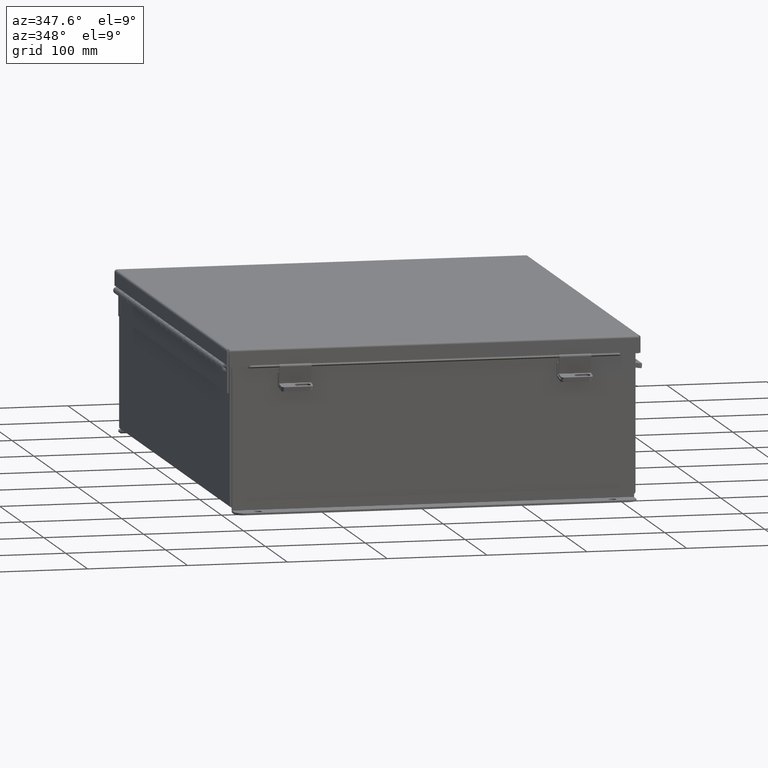
[diagram: clean part render]
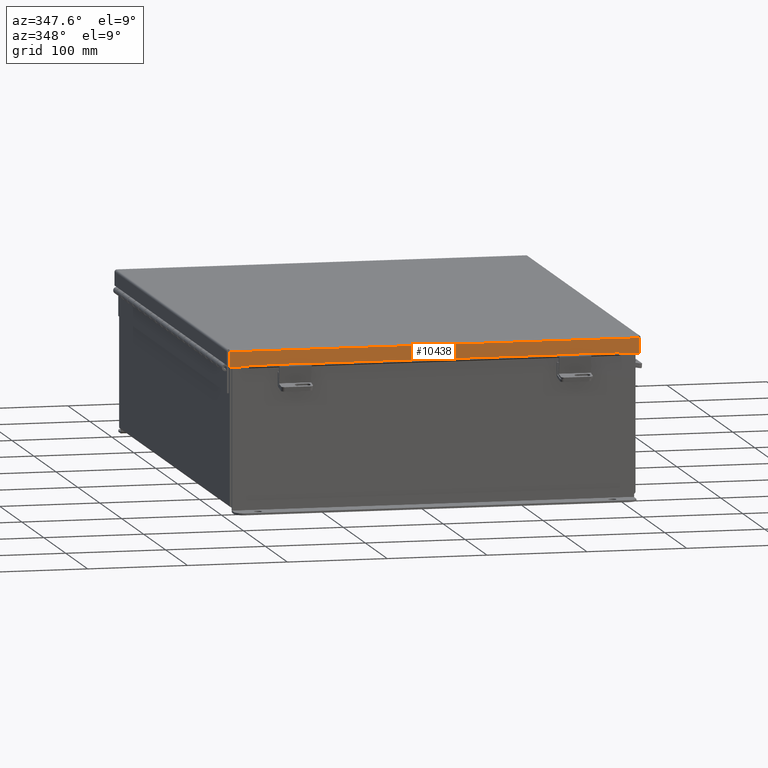
[diagram: same view with one face highlighted and labeled with its STEP entity id]
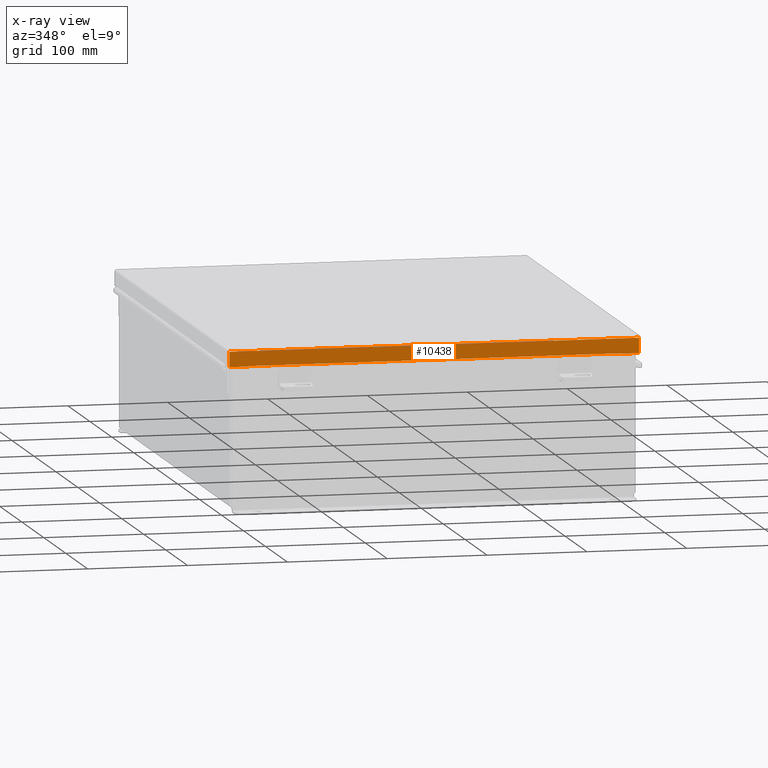
[diagram: x-ray of the same camera — body ghosted, the highlighted face saturated]
A machine part, auxiliary view. The second image highlights one B-rep face of the part: STEP entity #10438.
The next image is the same camera in x-ray: the body ghosted, the highlighted face saturated — about 0% of this face is hidden behind the body in this view.
In plain terms, the highlighted planar face has unit normal (0, 1, -0).
Its self-contained STEP definition (entity closure, byte-faithful):
#401 = CARTESIAN_POINT ( 'NONE',  ( 7.324478932188149800, -10.15625000000002000, 0.6123000000000005100 ) ) ;
#438 = CARTESIAN_POINT ( 'NONE',  ( 3.201384367575308500E-018, -10.15625000000002000, 0.6123000000000005100 ) ) ;
#499 = DIRECTION ( 'NONE',  ( -1.000000000000000000, -3.216520006922595800E-030, 4.186740220174584600E-018 ) ) ;
#590 = CARTESIAN_POINT ( 'NONE',  ( -8.074478932188169400, -10.15625000000002000, 0.6123000000000005100 ) ) ;
#601 = LINE ( 'NONE', #1860, #13265 ) ;
#1420 = CARTESIAN_POINT ( 'NONE',  ( 8.074478932188169400, -10.15625000000001600, -3.606039351636827200E-014 ) ) ;
#1560 = ORIENTED_EDGE ( 'NONE', *, *, #19174, .T. ) ;
#1860 = CARTESIAN_POINT ( 'NONE',  ( -7.324478932188148100, -10.15625000000002100, 0.6122999999999982900 ) ) ;
#1970 = CARTESIAN_POINT ( 'NONE',  ( -8.156250000000033800, -10.15625000000001600, 0.01299999999999901400 ) ) ;
#2698 = VECTOR ( 'NONE', #21449, 39.37007874015748100 ) ;
#2875 = ORIENTED_EDGE ( 'NONE', *, *, #18081, .F. ) ;
#3548 = EDGE_CURVE ( 'NONE', #10093, #6864, #12510, .T. ) ;
#3551 = CARTESIAN_POINT ( 'NONE',  ( -7.324478932188148100, -10.15625000000002100, 0.5967115427318782100 ) ) ;
#4418 = VERTEX_POINT ( 'NONE', #19879 ) ;
#5102 = CARTESIAN_POINT ( 'NONE',  ( 7.324478932188148100, -10.15625000000002000, 0.5967115427318782100 ) ) ;
#5781 = ORIENTED_EDGE ( 'NONE', *, *, #11777, .T. ) ;
#6864 = VERTEX_POINT ( 'NONE', #590 ) ;
#7177 = ORIENTED_EDGE ( 'NONE', *, *, #12712, .F. ) ;
#7187 = PLANE ( 'NONE',  #7364 ) ;
#7252 = LINE ( 'NONE', #11020, #2698 ) ;
#7364 = AXIS2_PLACEMENT_3D ( 'NONE', #15849, #8924, #21104 ) ;
#7835 = LINE ( 'NONE', #1420, #20656 ) ;
#7973 = EDGE_LOOP ( 'NONE', ( #7177, #8214, #18728, #2875, #5781, #1560, #19149, #19574 ) ) ;
#8214 = ORIENTED_EDGE ( 'NONE', *, *, #8428, .T. ) ;
#8322 = DIRECTION ( 'NONE',  ( 0.0000000000000000000, -3.569293475308494500E-015, 1.000000000000000000 ) ) ;
#8428 = EDGE_CURVE ( 'NONE', #21033, #6864, #20658, .T. ) ;
#8924 = DIRECTION ( 'NONE',  ( 3.183015112497910400E-030, 1.000000000000000000, 3.569293475308493700E-015 ) ) ;
#9042 = LINE ( 'NONE', #3551, #18292 ) ;
#9095 = LINE ( 'NONE', #14230, #22439 ) ;
#9113 = DIRECTION ( 'NONE',  ( -0.0000000000000000000, -3.569293475308494500E-015, 1.000000000000000000 ) ) ;
#9852 = VERTEX_POINT ( 'NONE', #401 ) ;
#10093 = VERTEX_POINT ( 'NONE', #21888 ) ;
#10365 = FACE_OUTER_BOUND ( 'NONE', #7973, .T. ) ;
#10438 = ADVANCED_FACE ( 'NONE', ( #10365 ), #7187, .F. ) ;
#11020 = CARTESIAN_POINT ( 'NONE',  ( 7.324478932188148100, -10.15625000000002100, 0.5967115427318782100 ) ) ;
#11777 = EDGE_CURVE ( 'NONE', #4418, #21097, #7835, .T. ) ;
#11902 = VERTEX_POINT ( 'NONE', #5102 ) ;
#12510 = LINE ( 'NONE', #13842, #16039 ) ;
#12712 = EDGE_CURVE ( 'NONE', #21033, #14196, #601, .T. ) ;
#12955 = VECTOR ( 'NONE', #14045, 39.37007874015748100 ) ;
#13104 = CARTESIAN_POINT ( 'NONE',  ( 8.074478932188169400, -10.15625000000002000, 0.6123000000000005100 ) ) ;
#13265 = VECTOR ( 'NONE', #13948, 39.37007874015748100 ) ;
#13842 = CARTESIAN_POINT ( 'NONE',  ( -8.074478932188169400, -10.15625000000001600, 0.0000000000000000000 ) ) ;
#13930 = DIRECTION ( 'NONE',  ( 1.000000000000000000, 3.215975411700707400E-030, -0.0000000000000000000 ) ) ;
#13948 = DIRECTION ( 'NONE',  ( 0.0000000000000000000, -1.846427556282924300E-029, -1.000000000000000000 ) ) ;
#14045 = DIRECTION ( 'NONE',  ( -1.000000000000000000, -3.191323508412550700E-030, -0.0000000000000000000 ) ) ;
#14196 = VERTEX_POINT ( 'NONE', #21601 ) ;
#14230 = CARTESIAN_POINT ( 'NONE',  ( 3.201384367575308500E-018, -10.15625000000002000, 0.6123000000000005100 ) ) ;
#14766 = CARTESIAN_POINT ( 'NONE',  ( -7.324478932188148100, -10.15625000000002000, 0.6123000000000005100 ) ) ;
#15849 = CARTESIAN_POINT ( 'NONE',  ( 0.0000000000000000000, -10.15625000000001600, -3.606039351636827200E-014 ) ) ;
#15997 = VECTOR ( 'NONE', #19488, 39.37007874015748100 ) ;
#16039 = VECTOR ( 'NONE', #9113, 39.37007874015748100 ) ;
#17755 = EDGE_CURVE ( 'NONE', #11902, #9852, #7252, .T. ) ;
#18081 = EDGE_CURVE ( 'NONE', #4418, #10093, #21672, .T. ) ;
#18292 = VECTOR ( 'NONE', #13930, 39.37007874015748100 ) ;
#18728 = ORIENTED_EDGE ( 'NONE', *, *, #3548, .F. ) ;
#19149 = ORIENTED_EDGE ( 'NONE', *, *, #17755, .F. ) ;
#19174 = EDGE_CURVE ( 'NONE', #21097, #9852, #9095, .T. ) ;
#19488 = DIRECTION ( 'NONE',  ( -1.000000000000000000, -3.216520006922595800E-030, 4.186740220174584600E-018 ) ) ;
#19574 = ORIENTED_EDGE ( 'NONE', *, *, #21413, .F. ) ;
#19879 = CARTESIAN_POINT ( 'NONE',  ( 8.074478932188169400, -10.15625000000001600, 0.01300000000000010700 ) ) ;
#20656 = VECTOR ( 'NONE', #8322, 39.37007874015748100 ) ;
#20658 = LINE ( 'NONE', #438, #15997 ) ;
#21033 = VERTEX_POINT ( 'NONE', #14766 ) ;
#21097 = VERTEX_POINT ( 'NONE', #13104 ) ;
#21104 = DIRECTION ( 'NONE',  ( 0.0000000000000000000, -3.569293475308493700E-015, 1.000000000000000000 ) ) ;
#21413 = EDGE_CURVE ( 'NONE', #14196, #11902, #9042, .T. ) ;
#21449 = DIRECTION ( 'NONE',  ( 7.009925220120346200E-014, 1.853823127269371600E-029, 1.000000000000000000 ) ) ;
#21601 = CARTESIAN_POINT ( 'NONE',  ( -7.324478932188148100, -10.15625000000002000, 0.5967115427318782100 ) ) ;
#21672 = LINE ( 'NONE', #1970, #12955 ) ;
#21888 = CARTESIAN_POINT ( 'NONE',  ( -8.074478932188169400, -10.15625000000001600, 0.01300000000000010700 ) ) ;
#22439 = VECTOR ( 'NONE', #499, 39.37007874015748100 ) ;